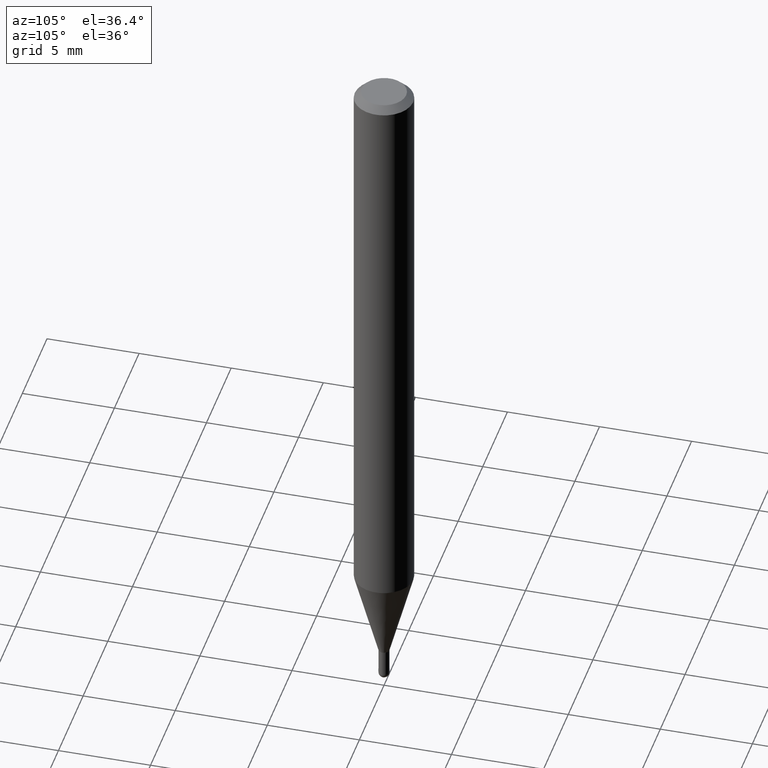
[diagram: clean part render]
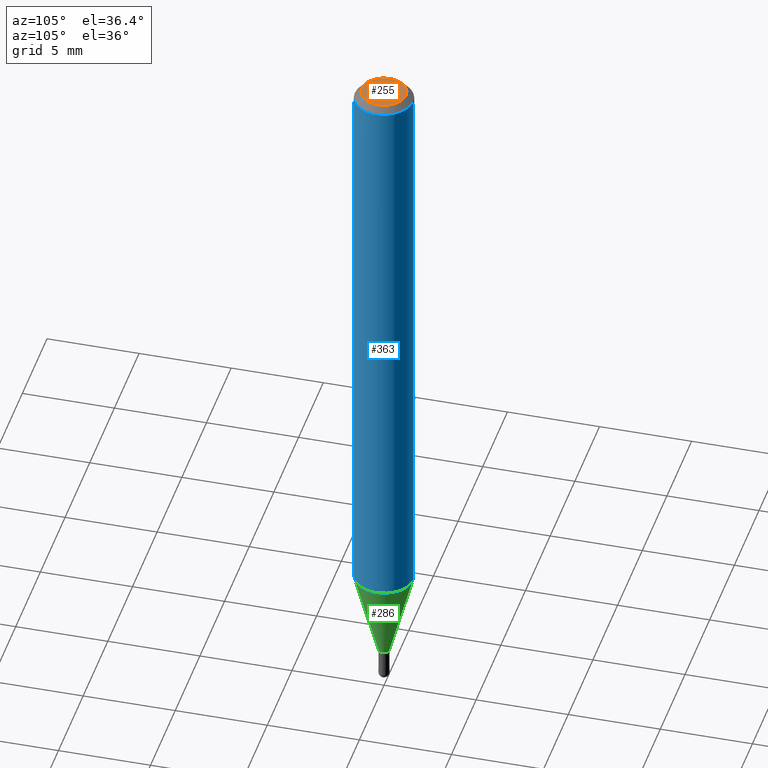
[diagram: same view with three faces highlighted in distinct colors, each labeled with its STEP entity id]
A machine part, auxiliary view with three faces highlighted in distinct colors.
Their STEP definitions:

[orange] entity #255 — the highlighted planar face has unit normal (0, -0, -1).
#4 = EDGE_CURVE ( 'NONE', #339, #381, #200, .T. ) ;
#25 = CARTESIAN_POINT ( 'NONE',  ( 3.840629472727447874E-16, 0.04749999999999999362, -2.313455976474456528E-16 ) ) ;
#26 = DIRECTION ( 'NONE',  ( -2.445463946140640432E-29, 3.491488298703480451E-15, 1.000000000000000000 ) ) ;
#35 = PLANE ( 'NONE',  #324 ) ;
#67 = CARTESIAN_POINT ( 'NONE',  ( -3.773273898774340269E-16, -0.04749999999999999362, 1.003457907293850206E-16 ) ) ;
#82 = CIRCLE ( 'NONE', #467, 0.04749999999999999362 ) ;
#115 = ORIENTED_EDGE ( 'NONE', *, *, #183, .T. ) ;
#165 = EDGE_LOOP ( 'NONE', ( #487, #115 ) ) ;
#183 = EDGE_CURVE ( 'NONE', #381, #339, #82, .T. ) ;
#200 = CIRCLE ( 'NONE', #428, 0.04749999999999999362 ) ;
#229 = DIRECTION ( 'NONE',  ( -6.982962677686266711E-15, -1.000000000000000000, 3.491488298703480845E-15 ) ) ;
#255 = ADVANCED_FACE ( 'NONE', ( #404 ), #35, .F. ) ;
#263 = CARTESIAN_POINT ( 'NONE',  ( 1.601776523847512105E-45, -2.286921464934118944E-31, -6.549990345903029144E-17 ) ) ;
#319 = DIRECTION ( 'NONE',  ( -6.982962677686266711E-15, -1.000000000000000000, 3.491488298703480845E-15 ) ) ;
#324 = AXIS2_PLACEMENT_3D ( 'NONE', #501, #396, #406 ) ;
#339 = VERTEX_POINT ( 'NONE', #25 ) ;
#381 = VERTEX_POINT ( 'NONE', #67 ) ;
#396 = DIRECTION ( 'NONE',  ( 2.445463946140639871E-29, -3.491488298703480845E-15, -1.000000000000000000 ) ) ;
#397 = CARTESIAN_POINT ( 'NONE',  ( 1.601776523847512105E-45, -2.286921464934118944E-31, -6.549990345903029144E-17 ) ) ;
#404 = FACE_OUTER_BOUND ( 'NONE', #165, .T. ) ;
#406 = DIRECTION ( 'NONE',  ( 6.982962677686265922E-15, 1.000000000000000000, -3.491488298703480845E-15 ) ) ;
#417 = DIRECTION ( 'NONE',  ( -2.445463946140640432E-29, 3.491488298703480451E-15, 1.000000000000000000 ) ) ;
#428 = AXIS2_PLACEMENT_3D ( 'NONE', #397, #26, #319 ) ;
#467 = AXIS2_PLACEMENT_3D ( 'NONE', #263, #417, #229 ) ;
#487 = ORIENTED_EDGE ( 'NONE', *, *, #4, .T. ) ;
#501 = CARTESIAN_POINT ( 'NONE',  ( 3.316907271900976096E-16, 0.04749999999999999362, -1.985956459179304886E-16 ) ) ;

[blue] entity #363 — the highlighted cylindrical surface (edge-blend (fillet) strip) has radius 1.5875 mm, axis along (-0, 0, 1).
#1 = CIRCLE ( 'NONE', #252, 0.06250000000000000000 ) ;
#59 = DIRECTION ( 'NONE',  ( -6.982962677686265922E-15, -1.000000000000000000, 4.370956789862821150E-15 ) ) ;
#60 = DIRECTION ( 'NONE',  ( -6.982962677686265922E-15, -1.000000000000000000, 3.483106191921935554E-15 ) ) ;
#64 = VECTOR ( 'NONE', #184, 39.37007874015748143 ) ;
#73 = EDGE_LOOP ( 'NONE', ( #187, #77, #403, #468 ) ) ;
#77 = ORIENTED_EDGE ( 'NONE', *, *, #106, .T. ) ;
#93 = VERTEX_POINT ( 'NONE', #405 ) ;
#106 = EDGE_CURVE ( 'NONE', #280, #427, #212, .T. ) ;
#111 = DIRECTION ( 'NONE',  ( -2.445463946140640432E-29, 3.491488298703480451E-15, 1.000000000000000000 ) ) ;
#121 = FACE_OUTER_BOUND ( 'NONE', #73, .T. ) ;
#172 = EDGE_CURVE ( 'NONE', #93, #280, #372, .T. ) ;
#174 = CARTESIAN_POINT ( 'NONE',  ( 4.440892098500625669E-16, 0.06250000000000000000, -2.182180186689675282E-16 ) ) ;
#178 = LINE ( 'NONE', #304, #64 ) ;
#184 = DIRECTION ( 'NONE',  ( -2.445463946140640432E-29, 3.491488298703480845E-15, 1.000000000000000000 ) ) ;
#185 = VERTEX_POINT ( 'NONE', #310 ) ;
#187 = ORIENTED_EDGE ( 'NONE', *, *, #172, .T. ) ;
#192 = DIRECTION ( 'NONE',  ( -6.982962677686265922E-15, -1.000000000000000000, 3.491488298703480451E-15 ) ) ;
#197 = EDGE_CURVE ( 'NONE', #185, #427, #1, .T. ) ;
#212 = LINE ( 'NONE', #174, #332 ) ;
#252 = AXIS2_PLACEMENT_3D ( 'NONE', #424, #276, #60 ) ;
#271 = CARTESIAN_POINT ( 'NONE',  ( 0.000000000000000000, 0.000000000000000000, 0.000000000000000000 ) ) ;
#276 = DIRECTION ( 'NONE',  ( -2.445463946140640432E-29, 3.491488298703480451E-15, 1.000000000000000000 ) ) ;
#280 = VERTEX_POINT ( 'NONE', #320 ) ;
#297 = CARTESIAN_POINT ( 'NONE',  ( 4.440892098500930859E-16, 0.06249999999999995143, -0.01500000000000028394 ) ) ;
#304 = CARTESIAN_POINT ( 'NONE',  ( -4.364351673553916201E-16, -0.06250000000000000000, 2.182180186689675282E-16 ) ) ;
#310 = CARTESIAN_POINT ( 'NONE',  ( -4.364351673553912750E-16, -0.06250000000000005551, -0.01499999999999984852 ) ) ;
#320 = CARTESIAN_POINT ( 'NONE',  ( 4.440892098500927901E-16, 0.06249999999999567013, -1.240665408813992343 ) ) ;
#332 = VECTOR ( 'NONE', #509, 39.37007874015748143 ) ;
#337 = DIRECTION ( 'NONE',  ( -2.445463946140640432E-29, 3.491488298703480451E-15, 1.000000000000000000 ) ) ;
#363 = ADVANCED_FACE ( 'NONE', ( #121 ), #439, .T. ) ;
#364 = AXIS2_PLACEMENT_3D ( 'NONE', #391, #337, #59 ) ;
#372 = CIRCLE ( 'NONE', #364, 0.06250000000000000000 ) ;
#391 = CARTESIAN_POINT ( 'NONE',  ( 3.034002526478456227E-29, -4.331768757480223659E-15, -1.240665408813992121 ) ) ;
#403 = ORIENTED_EDGE ( 'NONE', *, *, #197, .F. ) ;
#405 = CARTESIAN_POINT ( 'NONE',  ( -4.364351673553613476E-16, -0.06250000000000432987, -1.240665408813991899 ) ) ;
#414 = AXIS2_PLACEMENT_3D ( 'NONE', #271, #111, #192 ) ;
#424 = CARTESIAN_POINT ( 'NONE',  ( 3.668195919210977323E-31, -5.237232448055243799E-17, -0.01500000000000006710 ) ) ;
#427 = VERTEX_POINT ( 'NONE', #297 ) ;
#439 = CYLINDRICAL_SURFACE ( 'NONE', #414, 0.06250000000000000000 ) ;
#468 = ORIENTED_EDGE ( 'NONE', *, *, #489, .F. ) ;
#489 = EDGE_CURVE ( 'NONE', #93, #185, #178, .T. ) ;
#509 = DIRECTION ( 'NONE',  ( -2.445463946140640432E-29, 3.491488298703480845E-15, 1.000000000000000000 ) ) ;

[green] entity #286 — the highlighted conical surface has half-angle 15 deg.
#10 = CIRCLE ( 'NONE', #244, 0.01149999999999965286 ) ;
#38 = FACE_OUTER_BOUND ( 'NONE', #311, .T. ) ;
#59 = DIRECTION ( 'NONE',  ( -6.982962677686265922E-15, -1.000000000000000000, 4.370956789862821150E-15 ) ) ;
#68 = DIRECTION ( 'NONE',  ( -6.982962677686265922E-15, -1.000000000000000000, 0.000000000000000000 ) ) ;
#93 = VERTEX_POINT ( 'NONE', #405 ) ;
#95 = ORIENTED_EDGE ( 'NONE', *, *, #172, .F. ) ;
#116 = DIRECTION ( 'NONE',  ( -1.807323732225378260E-15, -0.2588190451025250693, 0.9659258262890670910 ) ) ;
#152 = CARTESIAN_POINT ( 'NONE',  ( 8.171241461244403586E-17, 0.01149999999999465686, -1.431000000000000050 ) ) ;
#157 = CONICAL_SURFACE ( 'NONE', #260, 0.01149999999999965286, 0.2617993877991574014 ) ;
#164 = CARTESIAN_POINT ( 'NONE',  ( 2.629008122312686102E-16, 0.01149999999999465686, -1.431000000000000050 ) ) ;
#167 = CARTESIAN_POINT ( 'NONE',  ( 3.499458906927257029E-29, -4.996319755444680050E-15, -1.431000000000000050 ) ) ;
#168 = EDGE_CURVE ( 'NONE', #307, #235, #10, .T. ) ;
#172 = EDGE_CURVE ( 'NONE', #93, #280, #372, .T. ) ;
#193 = LINE ( 'NONE', #152, #211 ) ;
#208 = EDGE_CURVE ( 'NONE', #235, #280, #193, .T. ) ;
#211 = VECTOR ( 'NONE', #312, 39.37007874015748143 ) ;
#235 = VERTEX_POINT ( 'NONE', #164 ) ;
#244 = AXIS2_PLACEMENT_3D ( 'NONE', #492, #298, #68 ) ;
#260 = AXIS2_PLACEMENT_3D ( 'NONE', #167, #322, #471 ) ;
#280 = VERTEX_POINT ( 'NONE', #320 ) ;
#286 = ADVANCED_FACE ( 'NONE', ( #38 ), #157, .T. ) ;
#298 = DIRECTION ( 'NONE',  ( -2.445463946140640432E-29, 3.491488298703480451E-15, 1.000000000000000000 ) ) ;
#307 = VERTEX_POINT ( 'NONE', #362 ) ;
#311 = EDGE_LOOP ( 'NONE', ( #470, #425, #95, #314 ) ) ;
#312 = DIRECTION ( 'NONE',  ( 1.839019923739649225E-15, 0.2588190451025318417, 0.9659258262890653146 ) ) ;
#314 = ORIENTED_EDGE ( 'NONE', *, *, #328, .F. ) ;
#320 = CARTESIAN_POINT ( 'NONE',  ( 4.440892098500927901E-16, 0.06249999999999567013, -1.240665408813992343 ) ) ;
#322 = DIRECTION ( 'NONE',  ( -2.445463946140640432E-29, 3.491488298703480451E-15, 1.000000000000000000 ) ) ;
#328 = EDGE_CURVE ( 'NONE', #307, #93, #398, .T. ) ;
#337 = DIRECTION ( 'NONE',  ( -2.445463946140640432E-29, 3.491488298703480451E-15, 1.000000000000000000 ) ) ;
#362 = CARTESIAN_POINT ( 'NONE',  ( -8.030407079335462685E-17, -0.01150000000000464886, -1.431000000000000050 ) ) ;
#364 = AXIS2_PLACEMENT_3D ( 'NONE', #391, #337, #59 ) ;
#372 = CIRCLE ( 'NONE', #364, 0.06250000000000000000 ) ;
#391 = CARTESIAN_POINT ( 'NONE',  ( 3.034002526478456227E-29, -4.331768757480223659E-15, -1.240665408813992121 ) ) ;
#398 = LINE ( 'NONE', #433, #437 ) ;
#405 = CARTESIAN_POINT ( 'NONE',  ( -4.364351673553613476E-16, -0.06250000000000432987, -1.240665408813991899 ) ) ;
#425 = ORIENTED_EDGE ( 'NONE', *, *, #208, .T. ) ;
#433 = CARTESIAN_POINT ( 'NONE',  ( -8.030407079335462685E-17, -0.01150000000000464886, -1.431000000000000050 ) ) ;
#437 = VECTOR ( 'NONE', #116, 39.37007874015748854 ) ;
#470 = ORIENTED_EDGE ( 'NONE', *, *, #168, .T. ) ;
#471 = DIRECTION ( 'NONE',  ( -6.982962677686265922E-15, -1.000000000000000000, 0.000000000000000000 ) ) ;
#492 = CARTESIAN_POINT ( 'NONE',  ( 3.499458906927257029E-29, -4.996319755444680050E-15, -1.431000000000000050 ) ) ;